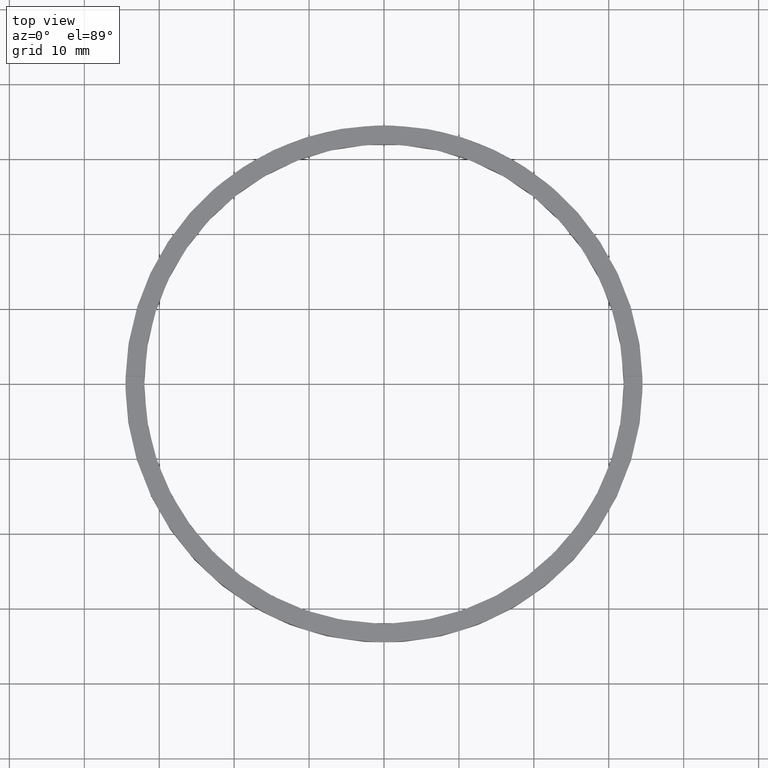
[diagram: clean part render]
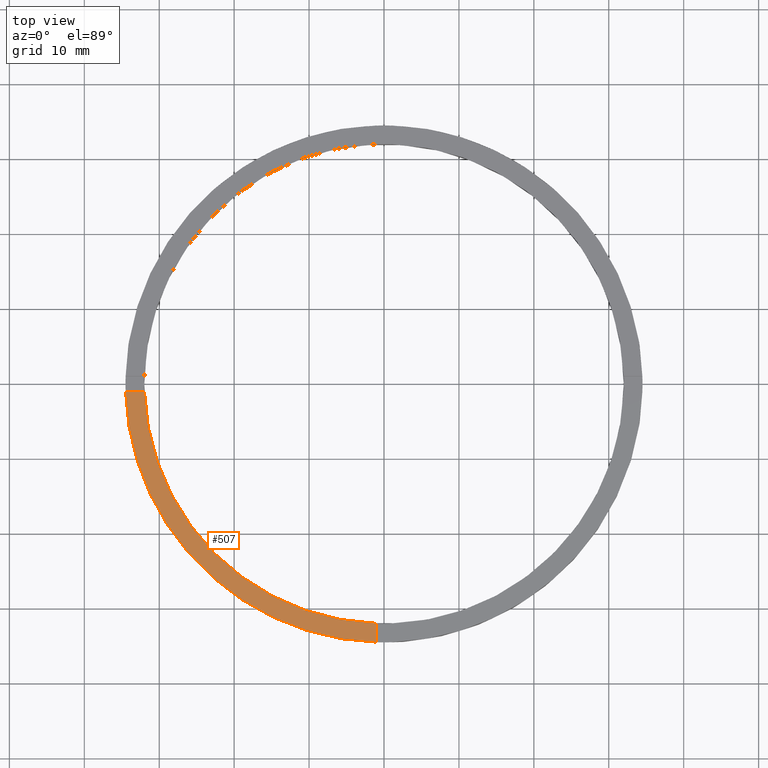
[diagram: same view with one face highlighted and labeled with its STEP entity id]
A machine part, top view. The second image highlights one B-rep face of the part: STEP entity #507.
In plain terms, the highlighted planar face has unit normal (0, 0, 1).
Its self-contained STEP definition (entity closure, byte-faithful):
#20 = CARTESIAN_POINT ( 'NONE',  ( -24.50000000000018119, -1.000000000000024647, 3.000000000000000000 ) ) ;
#33 = CARTESIAN_POINT ( 'NONE',  ( -1.000000000000161204, -31.98437118343894170, 3.000000000000000000 ) ) ;
#43 = EDGE_CURVE ( 'NONE', #752, #628, #219, .T. ) ;
#47 = CARTESIAN_POINT ( 'NONE',  ( 0.000000000000000000, 0.000000000000000000, 3.000000000000000000 ) ) ;
#101 = DIRECTION ( 'NONE',  ( 0.000000000000000000, 0.000000000000000000, 1.000000000000000000 ) ) ;
#180 = EDGE_CURVE ( 'NONE', #732, #752, #218, .T. ) ;
#186 = PLANE ( 'NONE',  #248 ) ;
#212 = CIRCLE ( 'NONE', #584, 34.49999999999999289 ) ;
#218 = CIRCLE ( 'NONE', #351, 32.00000000000000000 ) ;
#219 = LINE ( 'NONE', #402, #226 ) ;
#223 = DIRECTION ( 'NONE',  ( 0.000000000000000000, 0.000000000000000000, 1.000000000000000000 ) ) ;
#226 = VECTOR ( 'NONE', #701, 1000.000000000000000 ) ;
#231 = EDGE_CURVE ( 'NONE', #594, #628, #212, .T. ) ;
#248 = AXIS2_PLACEMENT_3D ( 'NONE', #265, #397, #451 ) ;
#255 = FACE_OUTER_BOUND ( 'NONE', #398, .T. ) ;
#265 = CARTESIAN_POINT ( 'NONE',  ( 0.000000000000000000, 0.000000000000000000, 3.000000000000000000 ) ) ;
#301 = CARTESIAN_POINT ( 'NONE',  ( -34.48550420104075442, -1.000000000000026645, 3.000000000000000000 ) ) ;
#347 = DIRECTION ( 'NONE',  ( 1.000000000000000000, 0.000000000000000000, 0.000000000000000000 ) ) ;
#351 = AXIS2_PLACEMENT_3D ( 'NONE', #47, #223, #527 ) ;
#397 = DIRECTION ( 'NONE',  ( 0.000000000000000000, 0.000000000000000000, 1.000000000000000000 ) ) ;
#398 = EDGE_LOOP ( 'NONE', ( #609, #741, #677, #582 ) ) ;
#402 = CARTESIAN_POINT ( 'NONE',  ( -1.000000000000162093, -24.50000000000017408, 3.000000000000000000 ) ) ;
#406 = EDGE_CURVE ( 'NONE', #594, #732, #516, .T. ) ;
#451 = DIRECTION ( 'NONE',  ( 1.000000000000000000, 0.000000000000000000, -0.000000000000000000 ) ) ;
#502 = DIRECTION ( 'NONE',  ( 1.000000000000000000, 1.951563910473907735E-16, -0.000000000000000000 ) ) ;
#507 = ADVANCED_FACE ( 'NONE', ( #255 ), #186, .T. ) ;
#516 = LINE ( 'NONE', #20, #777 ) ;
#527 = DIRECTION ( 'NONE',  ( 1.000000000000000000, 0.000000000000000000, 0.000000000000000000 ) ) ;
#582 = ORIENTED_EDGE ( 'NONE', *, *, #231, .T. ) ;
#584 = AXIS2_PLACEMENT_3D ( 'NONE', #706, #101, #347 ) ;
#594 = VERTEX_POINT ( 'NONE', #301 ) ;
#609 = ORIENTED_EDGE ( 'NONE', *, *, #43, .F. ) ;
#628 = VERTEX_POINT ( 'NONE', #737 ) ;
#677 = ORIENTED_EDGE ( 'NONE', *, *, #406, .F. ) ;
#699 = CARTESIAN_POINT ( 'NONE',  ( -31.98437118343894880, -1.000000000000026201, 3.000000000000000000 ) ) ;
#701 = DIRECTION ( 'NONE',  ( 1.301042606982605074E-16, -1.000000000000000000, 0.000000000000000000 ) ) ;
#706 = CARTESIAN_POINT ( 'NONE',  ( 0.000000000000000000, 0.000000000000000000, 3.000000000000000000 ) ) ;
#732 = VERTEX_POINT ( 'NONE', #699 ) ;
#737 = CARTESIAN_POINT ( 'NONE',  ( -1.000000000000160760, -34.48550420104075442, 3.000000000000000000 ) ) ;
#741 = ORIENTED_EDGE ( 'NONE', *, *, #180, .F. ) ;
#752 = VERTEX_POINT ( 'NONE', #33 ) ;
#777 = VECTOR ( 'NONE', #502, 1000.000000000000000 ) ;